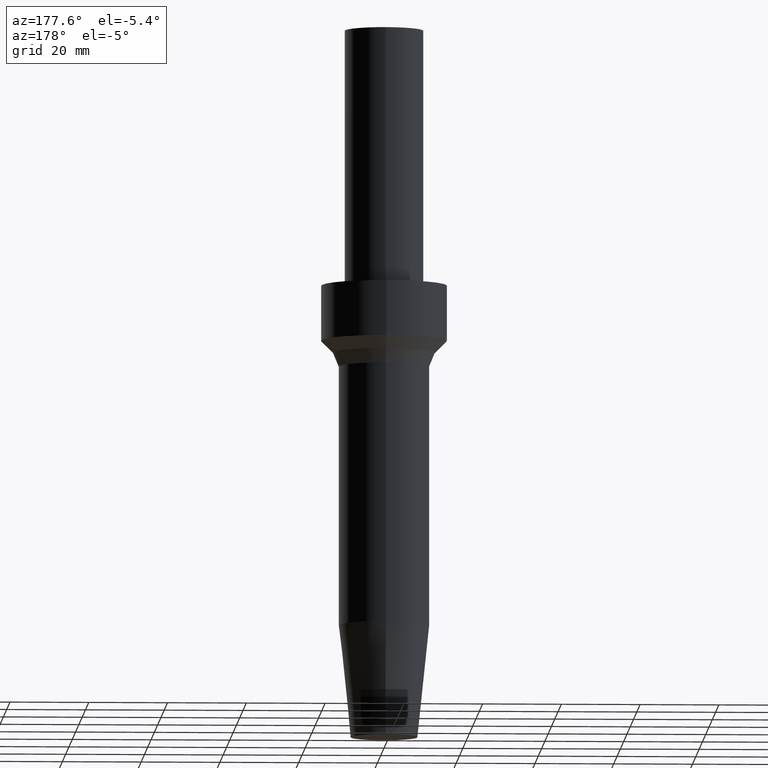
[diagram: clean part render]
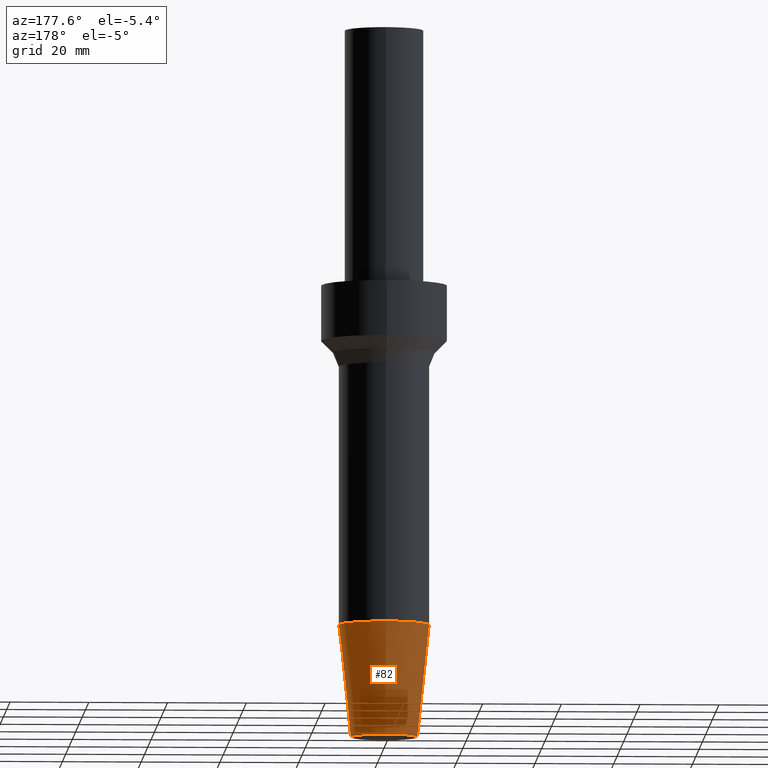
[diagram: same view with one face highlighted and labeled with its STEP entity id]
A machine part, auxiliary view. The second image highlights one B-rep face of the part: STEP entity #82.
In plain terms, the highlighted conical surface has half-angle 6 deg.
Its self-contained STEP definition (entity closure, byte-faithful):
#82=ADVANCED_FACE('',(#105,#106),#107,.T.);
#105=FACE_BOUND('',#130,.T.);
#106=FACE_BOUND('',#131,.T.);
#107=CONICAL_SURFACE('',#132,10.0000000000051,0.104719755119663);
#130=EDGE_LOOP('',(#169));
#131=EDGE_LOOP('',(#170));
#132=AXIS2_PLACEMENT_3D('',#171,#172,#173);
#169=ORIENTED_EDGE('',*,*,#185,.F.);
#170=ORIENTED_EDGE('',*,*,#184,.T.);
#171=CARTESIAN_POINT('',(-8.73880198106116E-016,1.5927225083092E-015,14.2715466812888));
#172=DIRECTION('',(-6.12323399573677E-017,1.11601254151197E-016,1.0));
#173=DIRECTION('',(2.00645320308564E-033,1.0,-1.11601254151197E-016));
#184=EDGE_CURVE('',#198,#198,#199,.T.);
#185=EDGE_CURVE('',#200,#200,#201,.T.);
#198=VERTEX_POINT('',#214);
#199=CIRCLE('',#215,11.5000000000004);
#200=VERTEX_POINT('',#216);
#201=CIRCLE('',#217,8.50000000000978);
#214=CARTESIAN_POINT('',(-1.74776039621223E-015,11.5000000000004,28.5430933625775));
#215=AXIS2_PLACEMENT_3D('',#236,#237,#238);
#216=CARTESIAN_POINT('',(0.0,8.50000000000978,0.0));
#217=AXIS2_PLACEMENT_3D('',#239,#240,#241);
#236=CARTESIAN_POINT('',(-1.74776039621223E-015,3.18544501661835E-015,28.5430933625775));
#237=DIRECTION('',(6.12323399573677E-017,-1.11601254151197E-016,-1.0));
#238=DIRECTION('',(2.00645320308564E-033,1.0,-1.11601254151197E-016));
#239=CARTESIAN_POINT('',(0.0,0.0,0.0));
#240=DIRECTION('',(6.12323399573677E-017,-1.11601254151197E-016,-1.0));
#241=DIRECTION('',(2.00645320308564E-033,1.0,-1.11601254151197E-016));